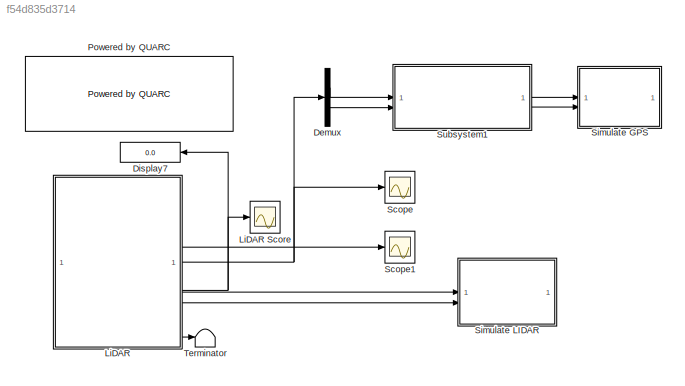
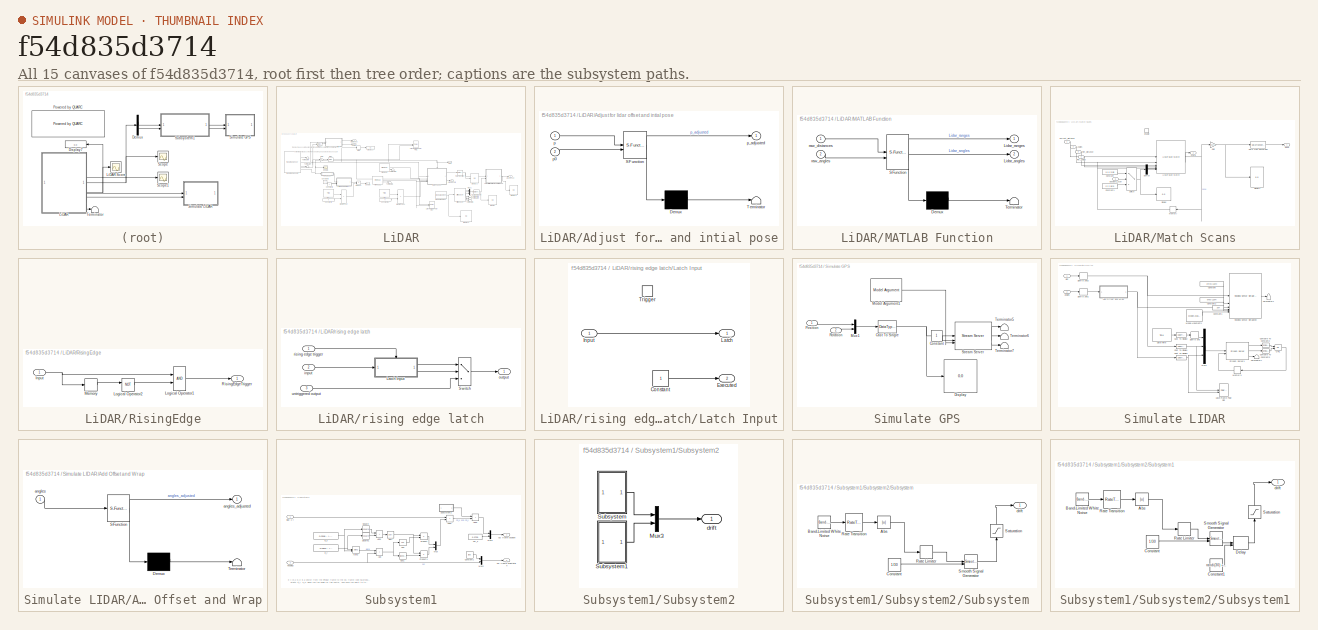
[diagram: thumbnail index - all 15 canvases of the model, root first then tree order]
MODEL slx_f54d835d3714
KIND model
CONFIG AbsTol = auto
CONFIG EnableMultiTasking = on
CONFIG FixedStep = Controller_Sample_Time
CONFIG MaxStep = auto
CONFIG MinStep = auto
CONFIG RelTol = 1e-3
CONFIG SampleTimeConstraint = Unconstrained
CONFIG SolverName = ode1
CONFIG StartTime = 0.0
CONFIG StopTime = inf
BLOCK [Demux] Demux
  Outputs = [2 1]
BLOCK [Display] Display7
  Decimation = 1
  NameLocation = top
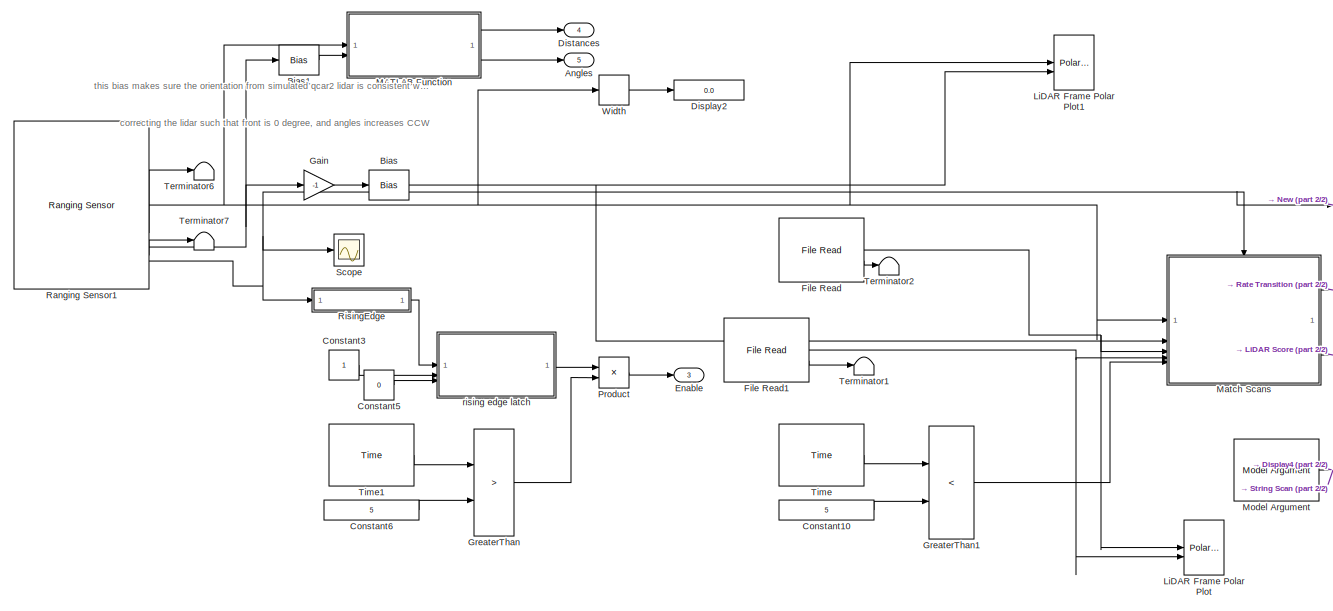
[diagram: LiDAR - part 1/2, center side, full height]
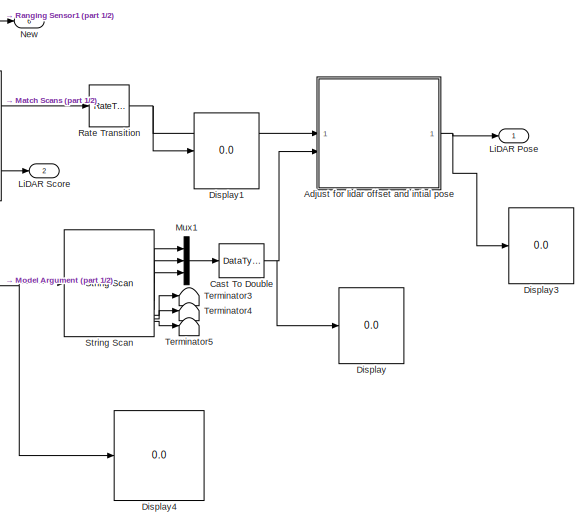
[diagram: LiDAR - part 2/2, middle right region]
BLOCK [SubSystem] LiDAR
BLOCK [Scope] LiDAR Score
  Floating = off
  NameLocation = right
  NumInputPorts = 1
  ScopeSpecificationString = Simulink.scopes.TimeScopeBlockCfg('CurrentConfiguration', extmgr.ConfigurationSet(extmgr.Configuration('Core','General UI',true),extmgr.Configuration('Core','Source UI',true),extmgr.Configuration('Sources','WiredSimulink',true,'DataLoggingVariableName','ScopeData1'),extmgr.Configuration('Visuals','Time Domain',true,'SerializedDisplays',{struct('MinYLimReal','-33.80513','MaxYLimReal','304.24617','Y...<+1499ch>
BLOCK [SubSystem] LiDAR/Adjust for lidar offset and intial pose
  ErrorFcn = Stateflow.Translate.translate
  PermitHierarchicalResolution = ExplicitOnly
  SFBlockType = MATLAB Function
  TreatAsAtomicUnit = on
BLOCK [Demux] LiDAR/Adjust for lidar offset and intial pose/ Demux 
  Outputs = 1
BLOCK [S-Function] LiDAR/Adjust for lidar offset and intial pose/ SFunction 
  EnableBusSupport = on
  FunctionName = sf_sfun
  PortCounts = [2 2]
  SFcnIsStateOwnerBlock = off
  SFunctionDeploymentMode = off
  Tag = Stateflow S-Function 1
BLOCK [Terminator] LiDAR/Adjust for lidar offset and intial pose/ Terminator 
BLOCK [Inport] LiDAR/Adjust for lidar offset and intial pose/p
BLOCK [Inport] LiDAR/Adjust for lidar offset and intial pose/p0
  Port = 2
BLOCK [Outport] LiDAR/Adjust for lidar offset and intial pose/p_adjusted
BLOCK [Outport] LiDAR/Angles
  Port = 5
BLOCK [Bias] LiDAR/Bias
  Bias = -pi+0*pi/180
  SaturateOnIntegerOverflow = off
BLOCK [Bias] LiDAR/Bias1
  Bias = -pi/2+0*pi/180
  SaturateOnIntegerOverflow = off
BLOCK [DataTypeConversion] LiDAR/Cast To Double
  OutDataTypeStr = double
  RndMeth = Floor
  SaturateOnIntegerOverflow = off
BLOCK [Constant] LiDAR/Constant10
  Value = 5
BLOCK [Constant] LiDAR/Constant3
BLOCK [Constant] LiDAR/Constant5
  Value = 0
BLOCK [Constant] LiDAR/Constant6
  Value = 5
BLOCK [Display] LiDAR/Display
  Decimation = 1
BLOCK [Display] LiDAR/Display1
  Decimation = 1
BLOCK [Display] LiDAR/Display2
  Decimation = 1
BLOCK [Display] LiDAR/Display3
  Decimation = 1
BLOCK [Display] LiDAR/Display4
  Decimation = 1
BLOCK [Outport] LiDAR/Distances
  Port = 4
BLOCK [Outport] LiDAR/Enable
  Port = 3
BLOCK [Reference] LiDAR/File Read  REF=quarc_library/Sources/Signals/File Read
  AttributesFormatString = "distance_new.mat
  SourceBlock = quarc_library/Sources/Signals/File Read
  SourceProductName = QUARC Targets
  SourceType = File Read
BLOCK [Reference] LiDAR/File Read1  REF=quarc_library/Sources/Signals/File Read
  AttributesFormatString = "angles_new.mat
  SourceBlock = quarc_library/Sources/Signals/File Read
  SourceProductName = QUARC Targets
  SourceType = File Read
BLOCK [Gain] LiDAR/Gain
  Gain = -1
BLOCK [RelationalOperator] LiDAR/GreaterThan
  InputSameDT = off
  Operator = >
  OutDataTypeStr = boolean
  RndMeth = Simplest
BLOCK [RelationalOperator] LiDAR/GreaterThan1
  InputSameDT = off
  Operator = <
  OutDataTypeStr = boolean
  RndMeth = Simplest
BLOCK [Reference] LiDAR/LiDAR Frame Polar Plot  REF=quarc_library/Sinks/Figures/Polar Figure
  SourceBlock = quarc_library/Sinks/Figures/Polar Figure
  SourceProductName = QUARC Targets
  SourceType = Polar Figure
BLOCK [Reference] LiDAR/LiDAR Frame Polar Plot1  REF=quarc_library/Sinks/Figures/Polar Figure
  SourceBlock = quarc_library/Sinks/Figures/Polar Figure
  SourceProductName = QUARC Targets
  SourceType = Polar Figure
BLOCK [Outport] LiDAR/LiDAR Pose
BLOCK [Outport] LiDAR/LiDAR Score 
  Port = 2
BLOCK [SubSystem] LiDAR/MATLAB Function
  ErrorFcn = Stateflow.Translate.translate
  PermitHierarchicalResolution = ExplicitOnly
  SFBlockType = MATLAB Function
  TreatAsAtomicUnit = on
BLOCK [Demux] LiDAR/MATLAB Function/ Demux 
  Outputs = 1
BLOCK [S-Function] LiDAR/MATLAB Function/ SFunction 
  EnableBusSupport = on
  FunctionName = sf_sfun
  PortCounts = [2 3]
  SFcnIsStateOwnerBlock = off
  SFunctionDeploymentMode = off
  Tag = Stateflow S-Function 2
BLOCK [Terminator] LiDAR/MATLAB Function/ Terminator 
BLOCK [Outport] LiDAR/MATLAB Function/Lidar_angles
  Port = 2
BLOCK [Outport] LiDAR/MATLAB Function/Lidar_ranges
BLOCK [Inport] LiDAR/MATLAB Function/raw_angles
  Port = 2
BLOCK [Inport] LiDAR/MATLAB Function/raw_distances
BLOCK [SubSystem] LiDAR/Match Scans
BLOCK [Inport] LiDAR/Match Scans/Angles
  Port = 2
BLOCK [Constant] LiDAR/Match Scans/Constant
  Value = [6 6 2*pi]
BLOCK [Constant] LiDAR/Match Scans/Constant1
  Value = [2 2 pi/2]
BLOCK [Inport] LiDAR/Match Scans/Current_Distance
BLOCK [DataTypeConversion] LiDAR/Match Scans/Data Type Conversion
  RndMeth = Floor
  SaturateOnIntegerOverflow = off
BLOCK [Demux] LiDAR/Match Scans/Demux
  Outputs = 2
BLOCK [Display] LiDAR/Match Scans/Display
  Decimation = 1
BLOCK [Display] LiDAR/Match Scans/Display1
  Decimation = 1
BLOCK [EnablePort] LiDAR/Match Scans/Enable
BLOCK [Gain] LiDAR/Match Scans/Gain
  Gain = [1,1,1]
BLOCK [Reference] LiDAR/Match Scans/LIDAR Scan Match  REF=quarc_library/Image Processing/Generic/LIDAR Scan Match
  SourceBlock = quarc_library/Image Processing/Generic/LIDAR Scan Match
  SourceProductName = QUARC Targets
  SourceType = LIDAR Scan Match
BLOCK [Memory] LiDAR/Match Scans/Memory
  InheritSampleTime = on
  InitialCondition = [0 0 0]
  LinearizeAsDelay = on
  LinearizeMemory = on
  NameLocation = top
BLOCK [Inport] LiDAR/Match Scans/Ref_Angles
  Port = 4
BLOCK [Inport] LiDAR/Match Scans/Ref_Distance
  Port = 3
BLOCK [Switch] LiDAR/Match Scans/Switch
  Criteria = u2 > Threshold
  InputSameDT = off
  SaturateOnIntegerOverflow = off
  Threshold = .5
BLOCK [Inport] LiDAR/Match Scans/absolute_scan
  Port = 5
BLOCK [Outport] LiDAR/Match Scans/pose
BLOCK [Outport] LiDAR/Match Scans/score
  Port = 2
BLOCK [Reference] LiDAR/Model Argument  REF=quarc_library/Sources/Signals/Model Argument
  AttributesFormatString = (-%<argument_name>)
  SourceBlock = quarc_library/Sources/Signals/Model Argument
  SourceProductName = QUARC Targets
  SourceType = Model Argument
BLOCK [Mux] LiDAR/Mux1
  DisplayOption = bar
  Inputs = 3
BLOCK [Outport] LiDAR/New
  Port = 6
BLOCK [Product] LiDAR/Product
BLOCK [Reference] LiDAR/Ranging  Sensor1  REF=quarc_library/Devices/Third-Party/Sensors/Ranging Sensor
  SourceBlock = quarc_library/Devices/Third-Party/Sensors/Ranging Sensor
  SourceProductName = QUARC Targets
  SourceType = Ranging Sensor
BLOCK [RateTransition] LiDAR/Rate Transition
BLOCK [SubSystem] LiDAR/RisingEdge
BLOCK [Inport] LiDAR/RisingEdge/Input
BLOCK [Logic] LiDAR/RisingEdge/Logical Operator1
  AllPortsSameDT = off
BLOCK [Logic] LiDAR/RisingEdge/Logical Operator2
  AllPortsSameDT = off
  Operator = NOT
BLOCK [Memory] LiDAR/RisingEdge/Memory
  InheritSampleTime = on
  LinearizeMemory = on
BLOCK [Outport] LiDAR/RisingEdge/RisingEdgeTrigger
  VectorParamsAs1DForOutWhenUnconnected = off
BLOCK [Scope] LiDAR/Scope
  Floating = off
  NumInputPorts = 1
  ScopeSpecificationString = Simulink.scopes.TimeScopeBlockCfg('CurrentConfiguration', extmgr.ConfigurationSet(extmgr.Configuration('Core','General UI',true),extmgr.Configuration('Core','Source UI',true),extmgr.Configuration('Sources','WiredSimulink',true,'DataLoggingVariableName','ScopeData1'),extmgr.Configuration('Visuals','Time Domain',true,'SerializedDisplays',{struct('MinYLimReal','-0.125','MaxYLimReal','1.125','YLabelRe...<+1361ch>
BLOCK [Reference] LiDAR/String Scan  REF=quarc_library/Strings/String Scan
  SourceBlock = quarc_library/Strings/String Scan
  SourceProductName = QUARC Targets
  SourceType = String Scan
BLOCK [Terminator] LiDAR/Terminator1
BLOCK [Terminator] LiDAR/Terminator2
BLOCK [Terminator] LiDAR/Terminator3
BLOCK [Terminator] LiDAR/Terminator4
BLOCK [Terminator] LiDAR/Terminator5
BLOCK [Terminator] LiDAR/Terminator6
BLOCK [Terminator] LiDAR/Terminator7
BLOCK [Reference] LiDAR/Time  REF=quarc_library/Sources/Time/Time
  SourceBlock = quarc_library/Sources/Time/Time
  SourceProductName = QUARC Targets
  SourceType = Time
BLOCK [Reference] LiDAR/Time1  REF=quarc_library/Sources/Time/Time
  SourceBlock = quarc_library/Sources/Time/Time
  SourceProductName = QUARC Targets
  SourceType = Time
BLOCK [Width] LiDAR/Width
BLOCK [SubSystem] LiDAR/rising edge latch
BLOCK [SubSystem] LiDAR/rising edge latch/Latch Input
  TreatAsAtomicUnit = on
BLOCK [Constant] LiDAR/rising edge latch/Latch Input/Constant
BLOCK [Outport] LiDAR/rising edge latch/Latch Input/Executed
  Port = 2
  VectorParamsAs1DForOutWhenUnconnected = off
BLOCK [Inport] LiDAR/rising edge latch/Latch Input/Input
BLOCK [Outport] LiDAR/rising edge latch/Latch Input/Latch
  VectorParamsAs1DForOutWhenUnconnected = off
BLOCK [TriggerPort] LiDAR/rising edge latch/Latch Input/Trigger
  StatesWhenEnabling = held
  VariantControl = (inherit)
BLOCK [Switch] LiDAR/rising edge latch/Switch
  InputSameDT = off
  SaturateOnIntegerOverflow = off
  Threshold = 0.5
BLOCK [Inport] LiDAR/rising edge latch/input
  Port = 2
BLOCK [Outport] LiDAR/rising edge latch/output
  VectorParamsAs1DForOutWhenUnconnected = off
BLOCK [Inport] LiDAR/rising edge latch/rising edge trigger
BLOCK [Inport] LiDAR/rising edge latch/untriggered output
  Port = 3
BLOCK [Reference] Powered by QUARC  REF=quarc_library/Logos/Powered by QUARC
  SourceBlock = quarc_library/Logos/Powered by QUARC
  SourceProductName = QUARC Targets
  SourceType = Powered by QUARC
BLOCK [Scope] Scope
  Floating = off
  NumInputPorts = 1
  ScopeSpecificationString = Simulink.scopes.TimeScopeBlockCfg('CurrentConfiguration', extmgr.ConfigurationSet(extmgr.Configuration('Core','General UI',true),extmgr.Configuration('Core','Source UI',true),extmgr.Configuration('Sources','WiredSimulink',true,'DataLoggingVariableName','ScopeData2'),extmgr.Configuration('Visuals','Time Domain',true,'SerializedDisplays',{struct('MinYLimReal','-2.08429','MaxYLimReal','2.74481','YLab...<+1392ch>
BLOCK [Scope] Scope1
  Floating = off
  NumInputPorts = 1
  ScopeSpecificationString = Simulink.scopes.TimeScopeBlockCfg('CurrentConfiguration', extmgr.ConfigurationSet(extmgr.Configuration('Core','General UI',true),extmgr.Configuration('Core','Source UI',true),extmgr.Configuration('Sources','WiredSimulink',true,'DataLoggingVariableName','ScopeData3'),extmgr.Configuration('Visuals','Time Domain',true),extmgr.Configuration('Tools','Plot Navigation',true),extmgr.Configuration('Tools',...<+40ch>
BLOCK [SubSystem] Simulate GPS
BLOCK [DataTypeConversion] Simulate GPS/Cast To Single
  OutDataTypeStr = single
  RndMeth = Floor
  SaturateOnIntegerOverflow = off
BLOCK [Constant] Simulate GPS/Constant
BLOCK [Display] Simulate GPS/Display
  Decimation = 1
BLOCK [Reference] Simulate GPS/Model Argument1  REF=quarc_library/Sources/Signals/Model Argument
  AttributesFormatString = (-%<argument_name>)
  SourceBlock = quarc_library/Sources/Signals/Model Argument
  SourceProductName = QUARC Targets
  SourceType = Model Argument
BLOCK [Mux] Simulate GPS/Mux1
  DisplayOption = bar
  Inputs = 2
BLOCK [Inport] Simulate GPS/Position
BLOCK [Inport] Simulate GPS/Rotation
  Port = 2
BLOCK [Reference] Simulate GPS/Stream Server  REF=quarc_library/Communications/Basic/Stream Server
  SourceBlock = quarc_library/Communications/Basic/Stream Server
  SourceProductName = QUARC Targets
  SourceType = Stream Server
BLOCK [Terminator] Simulate GPS/Terminator5
BLOCK [Terminator] Simulate GPS/Terminator6
BLOCK [Terminator] Simulate GPS/Terminator7
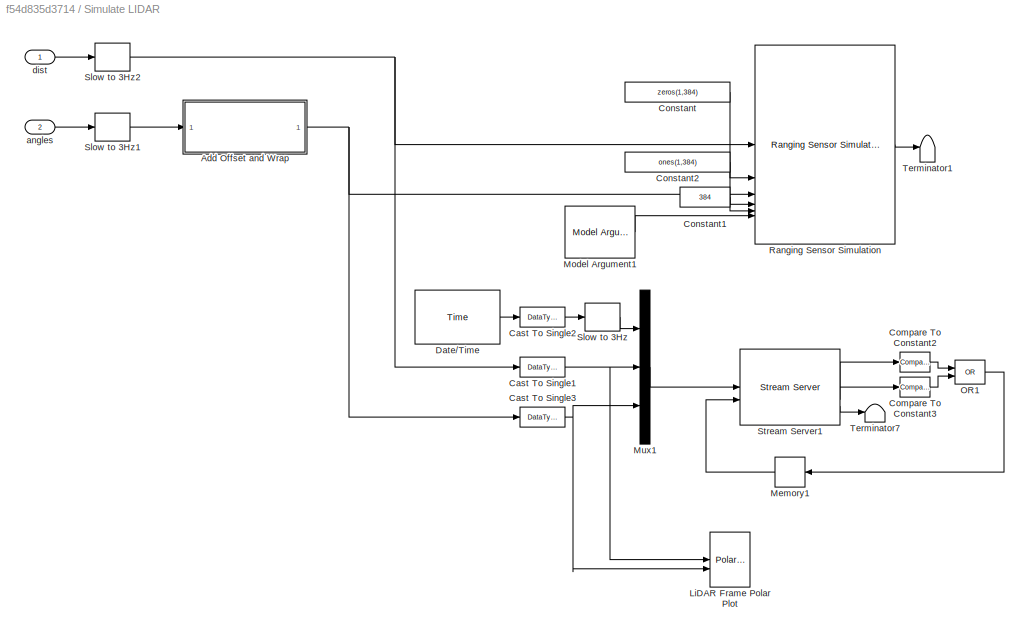
BLOCK [SubSystem] Simulate LIDAR
BLOCK [SubSystem] Simulate LIDAR/Add Offset and Wrap
  ErrorFcn = Stateflow.Translate.translate
  PermitHierarchicalResolution = ExplicitOnly
  SFBlockType = MATLAB Function
  TreatAsAtomicUnit = on
BLOCK [Demux] Simulate LIDAR/Add Offset and Wrap/ Demux 
  Outputs = 1
BLOCK [S-Function] Simulate LIDAR/Add Offset and Wrap/ SFunction 
  EnableBusSupport = on
  FunctionName = sf_sfun
  PortCounts = [1 2]
  SFcnIsStateOwnerBlock = off
  SFunctionDeploymentMode = off
  Tag = Stateflow S-Function 3
BLOCK [Terminator] Simulate LIDAR/Add Offset and Wrap/ Terminator 
BLOCK [Inport] Simulate LIDAR/Add Offset and Wrap/angles
BLOCK [Outport] Simulate LIDAR/Add Offset and Wrap/angles_adjusted
BLOCK [DataTypeConversion] Simulate LIDAR/Cast To Single1
  OutDataTypeStr = double
  RndMeth = Floor
  SaturateOnIntegerOverflow = off
BLOCK [DataTypeConversion] Simulate LIDAR/Cast To Single2
  OutDataTypeStr = double
  RndMeth = Floor
  SaturateOnIntegerOverflow = off
BLOCK [DataTypeConversion] Simulate LIDAR/Cast To Single3
  OutDataTypeStr = double
  RndMeth = Floor
  SaturateOnIntegerOverflow = off
BLOCK [Reference] Simulate LIDAR/Compare To Constant2  REF=simulink/Logic and Bit
Operations/Compare
To Constant
  SourceBlock = simulink/Logic and Bit\nOperations/Compare\nTo Constant
  SourceType = Compare To Constant
BLOCK [Reference] Simulate LIDAR/Compare To Constant3  REF=simulink/Logic and Bit
Operations/Compare
To Constant
  SourceBlock = simulink/Logic and Bit\nOperations/Compare\nTo Constant
  SourceType = Compare To Constant
BLOCK [Constant] Simulate LIDAR/Constant
  Value = zeros(1,384)
BLOCK [Constant] Simulate LIDAR/Constant1
  Value = 384
BLOCK [Constant] Simulate LIDAR/Constant2
  Value = ones(1,384)
BLOCK [Reference] Simulate LIDAR/Date//Time  REF=quarc_library/Sources/Time/Date//Time
  SourceBlock = quarc_library/Sources/Time/Date//Time
  SourceProductName = QUARC Targets
  SourceType = Date Time
BLOCK [Reference] Simulate LIDAR/LiDAR Frame Polar Plot  REF=quarc_library/Sinks/Figures/Polar Figure
  SourceBlock = quarc_library/Sinks/Figures/Polar Figure
  SourceProductName = QUARC Targets
  SourceType = Polar Figure
BLOCK [Memory] Simulate LIDAR/Memory1
  InheritSampleTime = on
  NameLocation = top
BLOCK [Reference] Simulate LIDAR/Model Argument1  REF=quarc_library/Sources/Signals/Model Argument
  AttributesFormatString = (-%<argument_name>)
  SourceBlock = quarc_library/Sources/Signals/Model Argument
  SourceProductName = QUARC Targets
  SourceType = Model Argument
BLOCK [Mux] Simulate LIDAR/Mux1
  DisplayOption = bar
  Inputs = 3
BLOCK [Logic] Simulate LIDAR/OR1
  AllPortsSameDT = off
  IconShape = distinctive
  Operator = OR
  OutDataTypeStr = boolean
BLOCK [Reference] Simulate LIDAR/Ranging Sensor Simulation  REF=quarc_library/Devices/Third-Party/Sensors/Ranging Sensor
Simulation
  SourceBlock = quarc_library/Devices/Third-Party/Sensors/Ranging Sensor\nSimulation
  SourceProductName = QUARC Targets
  SourceType = Ranging Sensor Simulation
BLOCK [RateTransition] Simulate LIDAR/Slow to 3Hz
  NameLocation = top
  OutPortSampleTime = qc_get_step_size*ceil(1/15 / qc_get_step_size)
BLOCK [RateTransition] Simulate LIDAR/Slow to 3Hz1
  NameLocation = top
  OutPortSampleTime = qc_get_step_size*ceil(1/15 / qc_get_step_size)
BLOCK [RateTransition] Simulate LIDAR/Slow to 3Hz2
  NameLocation = top
  OutPortSampleTime = qc_get_step_size*ceil(1/15 / qc_get_step_size)
BLOCK [Reference] Simulate LIDAR/Stream Server1  REF=quarc_library/Communications/Basic/Stream Server
  AttributesFormatString = "tcpip://localhost:18968"
  SourceBlock = quarc_library/Communications/Basic/Stream Server
  SourceProductName = QUARC Targets
  SourceType = Stream Server
BLOCK [Terminator] Simulate LIDAR/Terminator1
BLOCK [Terminator] Simulate LIDAR/Terminator7
BLOCK [Inport] Simulate LIDAR/angles
  Port = 2
BLOCK [Inport] Simulate LIDAR/dist
BLOCK [SubSystem] Subsystem1
BLOCK [Sum] Subsystem1/Add
  IconShape = rectangular
BLOCK [Sum] Subsystem1/Add1
  IconShape = rectangular
BLOCK [Sum] Subsystem1/Add2
  IconShape = rectangular
BLOCK [Sum] Subsystem1/Add3
  IconShape = rectangular
BLOCK [Trigonometry] Subsystem1/Atan2
  Operator = atan2
BLOCK [Outport] Subsystem1/CG frame orientation
  Port = 2
BLOCK [Outport] Subsystem1/CG frame position 
BLOCK [Constant] Subsystem1/CG_z
  NameLocation = left
  Value = 0.0709
BLOCK [Constant] Subsystem1/Constant1
  Value = [0 0]
BLOCK [Trigonometry] Subsystem1/Cos
  Operator = cos
BLOCK [Trigonometry] Subsystem1/Cos1
BLOCK [Mux] Subsystem1/Mux
  DisplayOption = bar
  Inputs = 2
BLOCK [Mux] Subsystem1/Mux1
  DisplayOption = bar
  Inputs = 2
BLOCK [Mux] Subsystem1/Mux2
  DisplayOption = bar
  Inputs = 2
BLOCK [Product] Subsystem1/Product
BLOCK [Product] Subsystem1/Product1
BLOCK [Sqrt] Subsystem1/Sqrt
BLOCK [Math] Subsystem1/Square
  Operator = square
BLOCK [Math] Subsystem1/Square1
  Operator = square
BLOCK [SubSystem] Subsystem1/Subsystem2
BLOCK [Mux] Subsystem1/Subsystem2/Mux3
  DisplayOption = bar
  Inputs = 2
BLOCK [SubSystem] Subsystem1/Subsystem2/Subsystem
BLOCK [Abs] Subsystem1/Subsystem2/Subsystem/Abs
  SaturateOnIntegerOverflow = off
BLOCK [Reference] Subsystem1/Subsystem2/Subsystem/Band-Limited White Noise  REF=simulink/Sources/Band-Limited
White Noise
  SourceBlock = simulink/Sources/Band-Limited\nWhite Noise
  SourceType = Band-Limited White Noise.
BLOCK [Constant] Subsystem1/Subsystem2/Subsystem/Constant
  SampleTime = 1/15
  Value = 1/30
BLOCK [RateLimiter] Subsystem1/Subsystem2/Subsystem/Rate Limiter
  RisingSlewLimit = 0.1
  SampleTimeMode = inherited
BLOCK [RateTransition] Subsystem1/Subsystem2/Subsystem/Rate Transition
BLOCK [Saturate] Subsystem1/Subsystem2/Subsystem/Saturation
  LowerLimit = -0.07/sqrt(2)
  NameLocation = right
  UpperLimit = 0.07/sqrt(2)
BLOCK [Reference] Subsystem1/Subsystem2/Subsystem/Smooth Signal Generator  REF=quarc_library/Sources/Signals/Smooth Signal
Generator
  SourceBlock = quarc_library/Sources/Signals/Smooth Signal\nGenerator
  SourceProductName = QUARC Targets
  SourceType = Smooth Signal Generator
BLOCK [Outport] Subsystem1/Subsystem2/Subsystem/drift
BLOCK [SubSystem] Subsystem1/Subsystem2/Subsystem1
BLOCK [Abs] Subsystem1/Subsystem2/Subsystem1/Abs
  SaturateOnIntegerOverflow = off
BLOCK [Reference] Subsystem1/Subsystem2/Subsystem1/Band-Limited White Noise  REF=simulink/Sources/Band-Limited
White Noise
  SourceBlock = simulink/Sources/Band-Limited\nWhite Noise
  SourceType = Band-Limited White Noise.
BLOCK [Constant] Subsystem1/Subsystem2/Subsystem1/Constant
  SampleTime = 1/15
  Value = 1/30
BLOCK [Constant] Subsystem1/Subsystem2/Subsystem1/Constant1
  Value = randi(30) + 45
BLOCK [Delay] Subsystem1/Subsystem2/Subsystem1/Delay
  DelayLength = randi(30) + 45
  DelayLengthSource = Input port
  InputPortMap = u0,p1
BLOCK [RateLimiter] Subsystem1/Subsystem2/Subsystem1/Rate Limiter
  RisingSlewLimit = 0.1
  SampleTimeMode = inherited
BLOCK [RateTransition] Subsystem1/Subsystem2/Subsystem1/Rate Transition
BLOCK [Saturate] Subsystem1/Subsystem2/Subsystem1/Saturation
  LowerLimit = -0.07/sqrt(2)
  NameLocation = right
  UpperLimit = 0.07/sqrt(2)
BLOCK [Reference] Subsystem1/Subsystem2/Subsystem1/Smooth Signal Generator  REF=quarc_library/Sources/Signals/Smooth Signal
Generator
  SourceBlock = quarc_library/Sources/Signals/Smooth Signal\nGenerator
  SourceProductName = QUARC Targets
  SourceType = Smooth Signal Generator
BLOCK [Outport] Subsystem1/Subsystem2/Subsystem1/drift
BLOCK [Outport] Subsystem1/Subsystem2/drift
BLOCK [Constant] Subsystem1/e_x
  Value = 0.0248 - (-0.0108)
BLOCK [Constant] Subsystem1/e_y
  Value = -0.0074 - (0)
BLOCK [Inport] Subsystem1/heading
  Port = 2
BLOCK [Inport] Subsystem1/lidar x y
BLOCK [Terminator] Terminator
ANNOTATION LiDAR: correcting the lidar such that front is 0 degree, and angles increases CCW
ANNOTATION LiDAR: this bias makes sure the orientation from simulated qcar2 lidar is consistent with that of qcar1
ANNOTATION Subsystem1: e = [e_x e_y] is a vector from the RPLidar frame to the CG frame (see hal.products.qcar QCarGeometry class or QVL documentation for details. atan2( e_y, e_x) gives you the angle for this vector, and once you add it to the heading angle psi, you get the net angle of the transformation in global frame. now find the x and y deltas, which are projections of the vector e . These x and y projects, added...<+47ch>
LINE Demux:1 -> Subsystem1:1
LINE Demux:2 -> Subsystem1:2
NET LiDAR/Adjust for lidar offset and intial pose:1 -> LiDAR/Display3:1, LiDAR/LiDAR Pose:1
LINE LiDAR/Bias1:1 -> LiDAR/MATLAB Function:2
NET LiDAR/Bias:1 -> LiDAR/LiDAR Frame Polar Plot1:2, LiDAR/Match Scans:2
NET LiDAR/Cast To Double:1 -> LiDAR/Adjust for lidar offset and intial pose:2, LiDAR/Display:1
LINE LiDAR/Constant10:1 -> LiDAR/GreaterThan1:2
LINE LiDAR/Constant3:1 -> LiDAR/rising edge latch:2
LINE LiDAR/Constant5:1 -> LiDAR/rising edge latch:3
LINE LiDAR/Constant6:1 -> LiDAR/GreaterThan:2
NET LiDAR/File Read1:1 -> LiDAR/LiDAR Frame Polar Plot:2, LiDAR/Match Scans:4
LINE LiDAR/File Read1:2 -> LiDAR/Terminator1:1
NET LiDAR/File Read:1 -> LiDAR/LiDAR Frame Polar Plot:1, LiDAR/Match Scans:3
LINE LiDAR/File Read:2 -> LiDAR/Terminator2:1
LINE LiDAR/Gain:1 -> LiDAR/Bias:1
LINE LiDAR/GreaterThan1:1 -> LiDAR/Match Scans:5
LINE LiDAR/GreaterThan:1 -> LiDAR/Product:2
LINE LiDAR/MATLAB Function:1 -> LiDAR/Distances:1
LINE LiDAR/MATLAB Function:2 -> LiDAR/Angles:1
LINE LiDAR/Match Scans/Angles:1 -> LiDAR/Match Scans/LIDAR Scan Match:2
LINE LiDAR/Match Scans/Constant1:1 -> LiDAR/Match Scans/Switch:3
LINE LiDAR/Match Scans/Constant:1 -> LiDAR/Match Scans/Switch:1
LINE LiDAR/Match Scans/Current_Distance:1 -> LiDAR/Match Scans/LIDAR Scan Match:1
LINE LiDAR/Match Scans/Data Type Conversion:1 -> LiDAR/Match Scans/pose:1
LINE LiDAR/Match Scans/Demux:1 -> LiDAR/Match Scans/LIDAR Scan Match:6
LINE LiDAR/Match Scans/Demux:2 -> LiDAR/Match Scans/LIDAR Scan Match:7
NET LiDAR/Match Scans/Gain:1 -> LiDAR/Match Scans/Data Type Conversion:1, LiDAR/Match Scans/Display1:1
NET LiDAR/Match Scans/LIDAR Scan Match:1 -> LiDAR/Match Scans/Gain:1, LiDAR/Match Scans/Memory:1
LINE LiDAR/Match Scans/LIDAR Scan Match:2 -> LiDAR/Match Scans/score:1
LINE LiDAR/Match Scans/Memory:1 -> LiDAR/Match Scans/LIDAR Scan Match:5
LINE LiDAR/Match Scans/Ref_Angles:1 -> LiDAR/Match Scans/LIDAR Scan Match:4
LINE LiDAR/Match Scans/Ref_Distance:1 -> LiDAR/Match Scans/LIDAR Scan Match:3
NET LiDAR/Match Scans/Switch:1 -> LiDAR/Match Scans/Demux:1, LiDAR/Match Scans/Display:1
LINE LiDAR/Match Scans/absolute_scan:1 -> LiDAR/Match Scans/Switch:2
LINE LiDAR/Match Scans:1 -> LiDAR/Rate Transition:1
LINE LiDAR/Match Scans:2 -> LiDAR/LiDAR Score :1
NET LiDAR/Model Argument:1 -> LiDAR/Display4:1, LiDAR/String Scan:1
LINE LiDAR/Mux1:1 -> LiDAR/Cast To Double:1
LINE LiDAR/Product:1 -> LiDAR/Enable:1
NET LiDAR/Ranging  Sensor1:1 -> LiDAR/LiDAR Frame Polar Plot1:1, LiDAR/MATLAB Function:1, LiDAR/Match Scans:1, LiDAR/Width:1
LINE LiDAR/Ranging  Sensor1:2 -> LiDAR/Terminator6:1
NET LiDAR/Ranging  Sensor1:3 -> LiDAR/Bias1:1, LiDAR/Gain:1
LINE LiDAR/Ranging  Sensor1:4 -> LiDAR/Terminator7:1
NET LiDAR/Ranging  Sensor1:5 -> LiDAR/Match Scans:enable, LiDAR/New:1, LiDAR/RisingEdge:1, LiDAR/Scope:1
NET LiDAR/Rate Transition:1 -> LiDAR/Adjust for lidar offset and intial pose:1, LiDAR/Display1:1
NET LiDAR/RisingEdge/Input:1 -> LiDAR/RisingEdge/Logical Operator1:1, LiDAR/RisingEdge/Memory:1
LINE LiDAR/RisingEdge/Logical Operator1:1 -> LiDAR/RisingEdge/RisingEdgeTrigger:1
LINE LiDAR/RisingEdge/Logical Operator2:1 -> LiDAR/RisingEdge/Logical Operator1:2
LINE LiDAR/RisingEdge/Memory:1 -> LiDAR/RisingEdge/Logical Operator2:1
LINE LiDAR/RisingEdge:1 -> LiDAR/rising edge latch:1
LINE LiDAR/String Scan:1 -> LiDAR/Mux1:1
LINE LiDAR/String Scan:2 -> LiDAR/Mux1:2
LINE LiDAR/String Scan:3 -> LiDAR/Mux1:3
LINE LiDAR/String Scan:4 -> LiDAR/Terminator3:1
LINE LiDAR/String Scan:5 -> LiDAR/Terminator4:1
LINE LiDAR/String Scan:6 -> LiDAR/Terminator5:1
LINE LiDAR/Time1:1 -> LiDAR/GreaterThan:1
LINE LiDAR/Time:1 -> LiDAR/GreaterThan1:1
LINE LiDAR/Width:1 -> LiDAR/Display2:1
LINE LiDAR/rising edge latch/Latch Input/Constant:1 -> LiDAR/rising edge latch/Latch Input/Executed:1
LINE LiDAR/rising edge latch/Latch Input/Input:1 -> LiDAR/rising edge latch/Latch Input/Latch:1
LINE LiDAR/rising edge latch/Latch Input:1 -> LiDAR/rising edge latch/Switch:1
LINE LiDAR/rising edge latch/Latch Input:2 -> LiDAR/rising edge latch/Switch:2
LINE LiDAR/rising edge latch/Switch:1 -> LiDAR/rising edge latch/output:1
LINE LiDAR/rising edge latch/input:1 -> LiDAR/rising edge latch/Latch Input:1
LINE LiDAR/rising edge latch/rising edge trigger:1 -> LiDAR/rising edge latch/Latch Input:trigger
LINE LiDAR/rising edge latch/untriggered output:1 -> LiDAR/rising edge latch/Switch:3
LINE LiDAR/rising edge latch:1 -> LiDAR/Product:1
NET LiDAR:1 -> Demux:1, Scope:1
NET LiDAR:2 -> Display7:1, LiDAR Score:1
LINE LiDAR:3 -> Scope1:1
LINE LiDAR:4 -> Simulate LIDAR:1
LINE LiDAR:5 -> Simulate LIDAR:2
LINE LiDAR:6 -> Terminator:1
NET Simulate GPS/Cast To Single:1 -> Simulate GPS/Display:1, Simulate GPS/Stream Server:1
LINE Simulate GPS/Constant:1 -> Simulate GPS/Stream Server:2
LINE Simulate GPS/Model Argument1:1 -> Simulate GPS/Stream Server:3
LINE Simulate GPS/Mux1:1 -> Simulate GPS/Cast To Single:1
LINE Simulate GPS/Position:1 -> Simulate GPS/Mux1:1
LINE Simulate GPS/Rotation:1 -> Simulate GPS/Mux1:2
LINE Simulate GPS/Stream Server:1 -> Simulate GPS/Terminator5:1
LINE Simulate GPS/Stream Server:2 -> Simulate GPS/Terminator6:1
LINE Simulate GPS/Stream Server:3 -> Simulate GPS/Terminator7:1
NET Simulate LIDAR/Add Offset and Wrap:1 -> Simulate LIDAR/Cast To Single3:1, Simulate LIDAR/Ranging Sensor Simulation:3
NET Simulate LIDAR/Cast To Single1:1 -> Simulate LIDAR/LiDAR Frame Polar Plot:1, Simulate LIDAR/Mux1:2
LINE Simulate LIDAR/Cast To Single2:1 -> Simulate LIDAR/Slow to 3Hz:1
NET Simulate LIDAR/Cast To Single3:1 -> Simulate LIDAR/LiDAR Frame Polar Plot:2, Simulate LIDAR/Mux1:3
LINE Simulate LIDAR/Compare To Constant2:1 -> Simulate LIDAR/OR1:1
LINE Simulate LIDAR/Compare To Constant3:1 -> Simulate LIDAR/OR1:2
LINE Simulate LIDAR/Constant1:1 -> Simulate LIDAR/Ranging Sensor Simulation:5
LINE Simulate LIDAR/Constant2:1 -> Simulate LIDAR/Ranging Sensor Simulation:4
LINE Simulate LIDAR/Constant:1 -> Simulate LIDAR/Ranging Sensor Simulation:2
LINE Simulate LIDAR/Date//Time:1 -> Simulate LIDAR/Cast To Single2:1
LINE Simulate LIDAR/Memory1:1 -> Simulate LIDAR/Stream Server1:2
LINE Simulate LIDAR/Model Argument1:1 -> Simulate LIDAR/Ranging Sensor Simulation:6
LINE Simulate LIDAR/Mux1:1 -> Simulate LIDAR/Stream Server1:1
LINE Simulate LIDAR/OR1:1 -> Simulate LIDAR/Memory1:1
LINE Simulate LIDAR/Ranging Sensor Simulation:1 -> Simulate LIDAR/Terminator1:1
LINE Simulate LIDAR/Slow to 3Hz1:1 -> Simulate LIDAR/Add Offset and Wrap:1
NET Simulate LIDAR/Slow to 3Hz2:1 -> Simulate LIDAR/Cast To Single1:1, Simulate LIDAR/Ranging Sensor Simulation:1
LINE Simulate LIDAR/Slow to 3Hz:1 -> Simulate LIDAR/Mux1:1
LINE Simulate LIDAR/Stream Server1:1 -> Simulate LIDAR/Compare To Constant2:1
LINE Simulate LIDAR/Stream Server1:2 -> Simulate LIDAR/Compare To Constant3:1
LINE Simulate LIDAR/Stream Server1:3 -> Simulate LIDAR/Terminator7:1
LINE Simulate LIDAR/angles:1 -> Simulate LIDAR/Slow to 3Hz1:1
LINE Simulate LIDAR/dist:1 -> Simulate LIDAR/Slow to 3Hz2:1
LINE Subsystem1/Add1:1 -> Subsystem1/Sqrt:1
LINE Subsystem1/Add2:1 -> Subsystem1/Add3:2
LINE Subsystem1/Add3:1 -> Subsystem1/Mux1:1
NET Subsystem1/Add:1 -> Subsystem1/Cos1:1, Subsystem1/Cos:1
LINE Subsystem1/Atan2:1 -> Subsystem1/Add:1
LINE Subsystem1/CG_z:1 -> Subsystem1/Mux1:2
LINE Subsystem1/Constant1:1 -> Subsystem1/Mux2:1
LINE Subsystem1/Cos1:1 -> Subsystem1/Product1:2
LINE Subsystem1/Cos:1 -> Subsystem1/Product:2
LINE Subsystem1/Mux1:1 -> Subsystem1/CG frame position :1
LINE Subsystem1/Mux2:1 -> Subsystem1/CG frame orientation:1
LINE Subsystem1/Mux:1 -> Subsystem1/Add2:2
LINE Subsystem1/Product1:1 -> Subsystem1/Mux:2
LINE Subsystem1/Product:1 -> Subsystem1/Mux:1
NET Subsystem1/Sqrt:1 -> Subsystem1/Product1:1, Subsystem1/Product:1
LINE Subsystem1/Square1:1 -> Subsystem1/Add1:2
LINE Subsystem1/Square:1 -> Subsystem1/Add1:1
LINE Subsystem1/Subsystem2/Mux3:1 -> Subsystem1/Subsystem2/drift:1
LINE Subsystem1/Subsystem2/Subsystem/Abs:1 -> Subsystem1/Subsystem2/Subsystem/Rate Limiter:1
LINE Subsystem1/Subsystem2/Subsystem/Band-Limited White Noise:1 -> Subsystem1/Subsystem2/Subsystem/Rate Transition:1
LINE Subsystem1/Subsystem2/Subsystem/Constant:1 -> Subsystem1/Subsystem2/Subsystem/Smooth Signal Generator:2
LINE Subsystem1/Subsystem2/Subsystem/Rate Limiter:1 -> Subsystem1/Subsystem2/Subsystem/Smooth Signal Generator:1
LINE Subsystem1/Subsystem2/Subsystem/Rate Transition:1 -> Subsystem1/Subsystem2/Subsystem/Abs:1
LINE Subsystem1/Subsystem2/Subsystem/Saturation:1 -> Subsystem1/Subsystem2/Subsystem/drift:1
LINE Subsystem1/Subsystem2/Subsystem/Smooth Signal Generator:1 -> Subsystem1/Subsystem2/Subsystem/Saturation:1
LINE Subsystem1/Subsystem2/Subsystem1/Abs:1 -> Subsystem1/Subsystem2/Subsystem1/Rate Limiter:1
LINE Subsystem1/Subsystem2/Subsystem1/Band-Limited White Noise:1 -> Subsystem1/Subsystem2/Subsystem1/Rate Transition:1
LINE Subsystem1/Subsystem2/Subsystem1/Constant1:1 -> Subsystem1/Subsystem2/Subsystem1/Delay:2
LINE Subsystem1/Subsystem2/Subsystem1/Constant:1 -> Subsystem1/Subsystem2/Subsystem1/Smooth Signal Generator:2
LINE Subsystem1/Subsystem2/Subsystem1/Delay:1 -> Subsystem1/Subsystem2/Subsystem1/Saturation:1
LINE Subsystem1/Subsystem2/Subsystem1/Rate Limiter:1 -> Subsystem1/Subsystem2/Subsystem1/Smooth Signal Generator:1
LINE Subsystem1/Subsystem2/Subsystem1/Rate Transition:1 -> Subsystem1/Subsystem2/Subsystem1/Abs:1
LINE Subsystem1/Subsystem2/Subsystem1/Saturation:1 -> Subsystem1/Subsystem2/Subsystem1/drift:1
LINE Subsystem1/Subsystem2/Subsystem1/Smooth Signal Generator:1 -> Subsystem1/Subsystem2/Subsystem1/Delay:1
LINE Subsystem1/Subsystem2/Subsystem1:1 -> Subsystem1/Subsystem2/Mux3:2
LINE Subsystem1/Subsystem2/Subsystem:1 -> Subsystem1/Subsystem2/Mux3:1
LINE Subsystem1/Subsystem2:1 -> Subsystem1/Add3:1
NET Subsystem1/e_x:1 -> Subsystem1/Atan2:2, Subsystem1/Square:1
NET Subsystem1/e_y:1 -> Subsystem1/Atan2:1, Subsystem1/Square1:1
NET Subsystem1/heading:1 -> Subsystem1/Add:2, Subsystem1/Mux2:2
LINE Subsystem1/lidar x y:1 -> Subsystem1/Add2:1
LINE Subsystem1:1 -> Simulate GPS:1
LINE Subsystem1:2 -> Simulate GPS:2
note: NET lines group one-source signal fan-out (src -> all destinations, sorted); 1:1 wires keep LINE
CHART LiDAR/MATLAB Function states=1 transitions=1
  STATE_LABEL 'eML_blk_kernel()'
  STATE_LABEL 'SCRIPT:\nfunction [Lidar_ranges,Lidar_angles]= fcn(raw_distances, raw_angles)\n\n%  Fixed sized vector used for streaming the LiDAR values \nLidar_ranges = zeros(384,1);\nLidar_angles = zeros(384,1);\n\n\nLidar_ranges(:)  = raw_distances;\nLidar_angles(:) =  raw_angles;\n\n\n\n'
CHART Simulate LIDAR/Add Offset and Wrap states=1 transitions=1
  STATE_LABEL 'eML_blk_kernel()'
  STATE_LABEL 'SCRIPT:\nfunction angles_adjusted = fcn(angles)\n\n\nangles_adjusted = wrapTo2Pi(angles + 3*pi/2);\n\n'
CHART LiDAR/Adjust for lidar offset and intial pose states=1 transitions=1
  STATE_LABEL 'eML_blk_kernel()'
  STATE_LABEL 'SCRIPT:\nfunction p_adjusted = fcn(p, p0)\n\nx0 = p0(1);\ny0 = p0(2);\nth0 = p0(3);\n\nx = p(1);\ny = p(2);\nth = p(3);\n\nx_adj = x0 + x*cos(th0) - y*sin(th0);\ny_adj = y0 + x*sin(th0) + y*cos(th0);\nth_adj = wrapToPi(th0 + th);\n\np_adjusted = [x_adj, y_adj, th_adj];'
CHART  states=0 transitions=0
CHART  states=0 transitions=0
CHART  states=0 transitions=0
